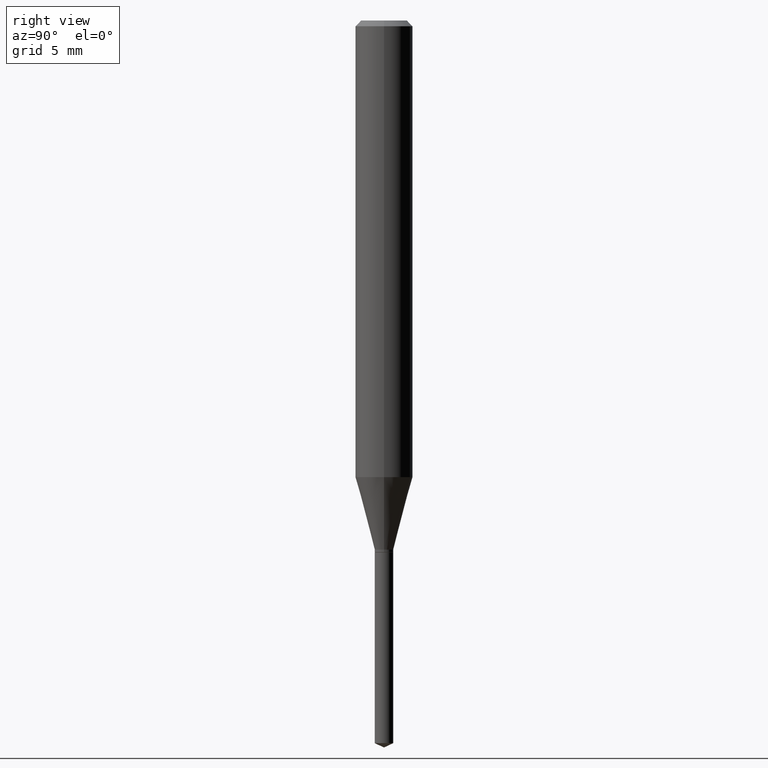
[diagram: clean part render]
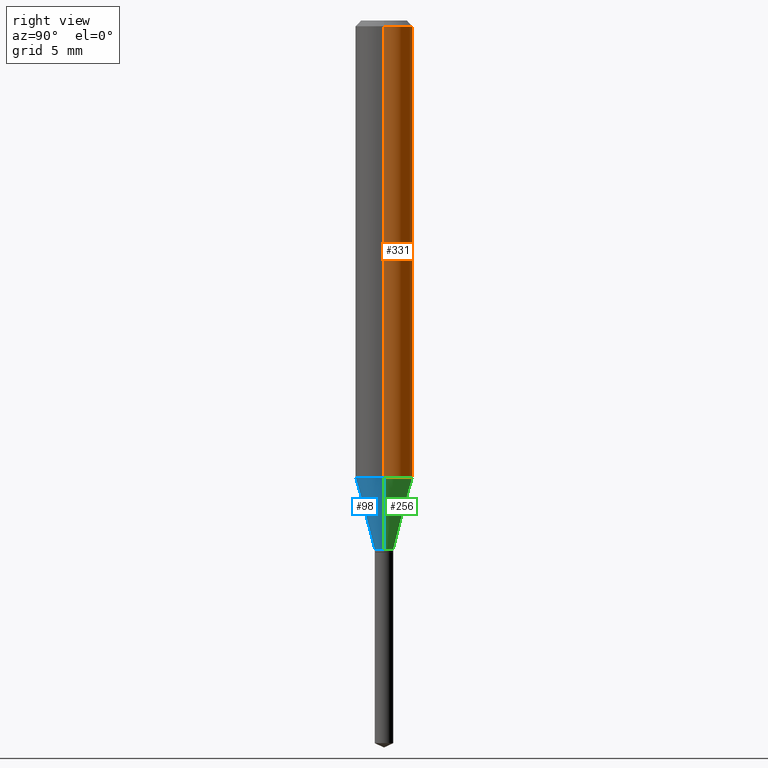
[diagram: same view with three faces highlighted in distinct colors, each labeled with its STEP entity id]
A machine part, right view with three faces highlighted in distinct colors.
Their STEP definitions:

[orange] entity #331 — the highlighted cylindrical surface (edge-blend (fillet) strip) has radius 1.4999 mm, axis along (-0, 0, 1).
#5 = VERTEX_POINT ( 'NONE', #349 ) ;
#6 = DIRECTION ( 'NONE',  ( 1.000000000000000000, -6.982962677686266711E-15, 4.876176775795935793E-29 ) ) ;
#7 = DIRECTION ( 'NONE',  ( -2.445468806185136597E-29, 3.491481338843145583E-15, 1.000000000000000000 ) ) ;
#19 = FACE_OUTER_BOUND ( 'NONE', #225, .T. ) ;
#33 = LINE ( 'NONE', #251, #446 ) ;
#40 = ORIENTED_EDGE ( 'NONE', *, *, #195, .T. ) ;
#48 = DIRECTION ( 'NONE',  ( -2.445468806185136597E-29, 3.491481338843145583E-15, 1.000000000000000000 ) ) ;
#60 = LINE ( 'NONE', #205, #407 ) ;
#83 = ORIENTED_EDGE ( 'NONE', *, *, #293, .F. ) ;
#106 = ORIENTED_EDGE ( 'NONE', *, *, #461, .F. ) ;
#109 = VERTEX_POINT ( 'NONE', #168 ) ;
#135 = DIRECTION ( 'NONE',  ( -2.445468806185136877E-29, 3.491481338843145188E-15, 1.000000000000000000 ) ) ;
#161 = CYLINDRICAL_SURFACE ( 'NONE', #428, 0.05905000000000005383 ) ;
#168 = CARTESIAN_POINT ( 'NONE',  ( -0.05905000000000010241, -2.861385485543939476E-15, -0.9397045702376232157 ) ) ;
#192 = VERTEX_POINT ( 'NONE', #402 ) ;
#195 = EDGE_CURVE ( 'NONE', #109, #192, #33, .T. ) ;
#205 = CARTESIAN_POINT ( 'NONE',  ( 0.05905000000000005383, -4.123439461173744271E-16, 2.879382386107502672E-30 ) ) ;
#225 = EDGE_LOOP ( 'NONE', ( #359, #40, #83, #106 ) ) ;
#251 = CARTESIAN_POINT ( 'NONE',  ( -0.05905000000000005383, 4.195754854663395423E-16, -2.904631170795524694E-30 ) ) ;
#260 = AXIS2_PLACEMENT_3D ( 'NONE', #383, #7, #440 ) ;
#267 = VERTEX_POINT ( 'NONE', #380 ) ;
#279 = DIRECTION ( 'NONE',  ( -2.445468806185136597E-29, 3.491481338843145583E-15, 1.000000000000000000 ) ) ;
#293 = EDGE_CURVE ( 'NONE', #267, #192, #452, .T. ) ;
#310 = CARTESIAN_POINT ( 'NONE',  ( 0.000000000000000000, 0.000000000000000000, 0.000000000000000000 ) ) ;
#328 = DIRECTION ( 'NONE',  ( -2.445468806185136877E-29, 3.491481338843145188E-15, 1.000000000000000000 ) ) ;
#331 = ADVANCED_FACE ( 'NONE', ( #19 ), #161, .T. ) ;
#341 = CIRCLE ( 'NONE', #382, 0.05905000000000010935 ) ;
#349 = CARTESIAN_POINT ( 'NONE',  ( 0.05905000000000010241, -3.693304917127654284E-15, -0.9397045702376232157 ) ) ;
#359 = ORIENTED_EDGE ( 'NONE', *, *, #405, .T. ) ;
#380 = CARTESIAN_POINT ( 'NONE',  ( 0.05904999999999999832, -4.535783407291118600E-16, -0.01181000000000006871 ) ) ;
#382 = AXIS2_PLACEMENT_3D ( 'NONE', #395, #48, #424 ) ;
#383 = CARTESIAN_POINT ( 'NONE',  ( 2.888098660104663328E-31, -4.123439461173779030E-17, -0.01181000000000006871 ) ) ;
#395 = CARTESIAN_POINT ( 'NONE',  ( 2.298018213545717288E-29, -3.280960971010279363E-15, -0.9397045702376232157 ) ) ;
#402 = CARTESIAN_POINT ( 'NONE',  ( -0.05904999999999999832, -1.241522197344668659E-15, -0.01181000000000006871 ) ) ;
#405 = EDGE_CURVE ( 'NONE', #5, #109, #341, .T. ) ;
#407 = VECTOR ( 'NONE', #328, 39.37007874015748143 ) ;
#424 = DIRECTION ( 'NONE',  ( 1.000000000000000000, -6.982962677686267499E-15, 0.000000000000000000 ) ) ;
#428 = AXIS2_PLACEMENT_3D ( 'NONE', #310, #279, #6 ) ;
#440 = DIRECTION ( 'NONE',  ( 1.000000000000000000, -6.982962677686266711E-15, 0.000000000000000000 ) ) ;
#446 = VECTOR ( 'NONE', #135, 39.37007874015748143 ) ;
#452 = CIRCLE ( 'NONE', #260, 0.05904999999999999832 ) ;
#461 = EDGE_CURVE ( 'NONE', #5, #267, #60, .T. ) ;

[blue] entity #98 — the highlighted conical surface has half-angle 15 deg.
#4 = CARTESIAN_POINT ( 'NONE',  ( 2.662626436174376212E-29, -3.801524881732416844E-15, -1.088799999999999768 ) ) ;
#5 = VERTEX_POINT ( 'NONE', #349 ) ;
#8 = VERTEX_POINT ( 'NONE', #55 ) ;
#13 = ORIENTED_EDGE ( 'NONE', *, *, #425, .T. ) ;
#25 = EDGE_CURVE ( 'NONE', #8, #109, #148, .T. ) ;
#32 = EDGE_CURVE ( 'NONE', #109, #5, #133, .T. ) ;
#55 = CARTESIAN_POINT ( 'NONE',  ( -0.01910000000000000239, -3.674889070683229485E-15, -1.088799999999999768 ) ) ;
#65 = ORIENTED_EDGE ( 'NONE', *, *, #32, .F. ) ;
#76 = DIRECTION ( 'NONE',  ( 1.000000000000000000, -6.982962677686266711E-15, 0.000000000000000000 ) ) ;
#89 = DIRECTION ( 'NONE',  ( -2.445468806185136597E-29, 3.491481338843145583E-15, 1.000000000000000000 ) ) ;
#98 = ADVANCED_FACE ( 'NONE', ( #470 ), #401, .T. ) ;
#109 = VERTEX_POINT ( 'NONE', #168 ) ;
#110 = DIRECTION ( 'NONE',  ( -2.445468806185136597E-29, 3.491481338843145583E-15, 1.000000000000000000 ) ) ;
#118 = DIRECTION ( 'NONE',  ( -2.445468806185136597E-29, 3.491481338843145583E-15, 1.000000000000000000 ) ) ;
#121 = DIRECTION ( 'NONE',  ( 1.000000000000000000, -6.982962677686267499E-15, 0.000000000000000000 ) ) ;
#133 = CIRCLE ( 'NONE', #196, 0.05905000000000010935 ) ;
#136 = CARTESIAN_POINT ( 'NONE',  ( 0.01910000000000000239, -3.934899468876224450E-15, -1.088799999999999768 ) ) ;
#148 = LINE ( 'NONE', #311, #373 ) ;
#168 = CARTESIAN_POINT ( 'NONE',  ( -0.05905000000000010241, -2.861385485543939476E-15, -0.9397045702376232157 ) ) ;
#170 = LINE ( 'NONE', #271, #486 ) ;
#186 = AXIS2_PLACEMENT_3D ( 'NONE', #4, #110, #76 ) ;
#196 = AXIS2_PLACEMENT_3D ( 'NONE', #429, #89, #121 ) ;
#201 = CARTESIAN_POINT ( 'NONE',  ( 2.662626436174376212E-29, -3.801524881732416844E-15, -1.088799999999999768 ) ) ;
#226 = VERTEX_POINT ( 'NONE', #136 ) ;
#229 = EDGE_LOOP ( 'NONE', ( #278, #13, #385, #65 ) ) ;
#271 = CARTESIAN_POINT ( 'NONE',  ( 0.01910000000000000239, -3.934899468876224450E-15, -1.088799999999999768 ) ) ;
#276 = CIRCLE ( 'NONE', #186, 0.01910000000000000239 ) ;
#278 = ORIENTED_EDGE ( 'NONE', *, *, #25, .F. ) ;
#287 = EDGE_CURVE ( 'NONE', #226, #5, #170, .T. ) ;
#309 = DIRECTION ( 'NONE',  ( 0.2588190451025213501, 1.565188264969621968E-15, 0.9659258262890682012 ) ) ;
#311 = CARTESIAN_POINT ( 'NONE',  ( -0.01910000000000000239, -3.665811219202237667E-15, -1.088799999999999768 ) ) ;
#327 = AXIS2_PLACEMENT_3D ( 'NONE', #201, #118, #389 ) ;
#349 = CARTESIAN_POINT ( 'NONE',  ( 0.05905000000000010241, -3.693304917127654284E-15, -0.9397045702376232157 ) ) ;
#369 = DIRECTION ( 'NONE',  ( -0.2588190451025213501, 5.211531920934551042E-15, 0.9659258262890682012 ) ) ;
#373 = VECTOR ( 'NONE', #369, 39.37007874015747433 ) ;
#385 = ORIENTED_EDGE ( 'NONE', *, *, #287, .T. ) ;
#389 = DIRECTION ( 'NONE',  ( 1.000000000000000000, -6.982962677686266711E-15, 0.000000000000000000 ) ) ;
#401 = CONICAL_SURFACE ( 'NONE', #327, 0.01910000000000000239, 0.2617993877991500740 ) ;
#425 = EDGE_CURVE ( 'NONE', #8, #226, #276, .T. ) ;
#429 = CARTESIAN_POINT ( 'NONE',  ( 2.298018213545717288E-29, -3.280960971010279363E-15, -0.9397045702376232157 ) ) ;
#470 = FACE_OUTER_BOUND ( 'NONE', #229, .T. ) ;
#486 = VECTOR ( 'NONE', #309, 39.37007874015747433 ) ;

[green] entity #256 — the highlighted conical surface has half-angle 15 deg.
#3 = ORIENTED_EDGE ( 'NONE', *, *, #405, .F. ) ;
#5 = VERTEX_POINT ( 'NONE', #349 ) ;
#8 = VERTEX_POINT ( 'NONE', #55 ) ;
#11 = EDGE_LOOP ( 'NONE', ( #352, #488, #3, #489 ) ) ;
#25 = EDGE_CURVE ( 'NONE', #8, #109, #148, .T. ) ;
#48 = DIRECTION ( 'NONE',  ( -2.445468806185136597E-29, 3.491481338843145583E-15, 1.000000000000000000 ) ) ;
#55 = CARTESIAN_POINT ( 'NONE',  ( -0.01910000000000000239, -3.674889070683229485E-15, -1.088799999999999768 ) ) ;
#62 = CONICAL_SURFACE ( 'NONE', #315, 0.01910000000000000239, 0.2617993877991500740 ) ;
#109 = VERTEX_POINT ( 'NONE', #168 ) ;
#136 = CARTESIAN_POINT ( 'NONE',  ( 0.01910000000000000239, -3.934899468876224450E-15, -1.088799999999999768 ) ) ;
#144 = FACE_OUTER_BOUND ( 'NONE', #11, .T. ) ;
#148 = LINE ( 'NONE', #311, #373 ) ;
#163 = CARTESIAN_POINT ( 'NONE',  ( 2.662626436174376212E-29, -3.801524881732416844E-15, -1.088799999999999768 ) ) ;
#168 = CARTESIAN_POINT ( 'NONE',  ( -0.05905000000000010241, -2.861385485543939476E-15, -0.9397045702376232157 ) ) ;
#170 = LINE ( 'NONE', #271, #486 ) ;
#177 = DIRECTION ( 'NONE',  ( 1.000000000000000000, -6.982962677686266711E-15, 0.000000000000000000 ) ) ;
#218 = DIRECTION ( 'NONE',  ( -2.445468806185136597E-29, 3.491481338843145583E-15, 1.000000000000000000 ) ) ;
#226 = VERTEX_POINT ( 'NONE', #136 ) ;
#256 = ADVANCED_FACE ( 'NONE', ( #144 ), #62, .T. ) ;
#261 = CARTESIAN_POINT ( 'NONE',  ( 2.662626436174376212E-29, -3.801524881732416844E-15, -1.088799999999999768 ) ) ;
#271 = CARTESIAN_POINT ( 'NONE',  ( 0.01910000000000000239, -3.934899468876224450E-15, -1.088799999999999768 ) ) ;
#287 = EDGE_CURVE ( 'NONE', #226, #5, #170, .T. ) ;
#290 = DIRECTION ( 'NONE',  ( -2.445468806185136597E-29, 3.491481338843145583E-15, 1.000000000000000000 ) ) ;
#309 = DIRECTION ( 'NONE',  ( 0.2588190451025213501, 1.565188264969621968E-15, 0.9659258262890682012 ) ) ;
#311 = CARTESIAN_POINT ( 'NONE',  ( -0.01910000000000000239, -3.665811219202237667E-15, -1.088799999999999768 ) ) ;
#315 = AXIS2_PLACEMENT_3D ( 'NONE', #261, #218, #177 ) ;
#341 = CIRCLE ( 'NONE', #382, 0.05905000000000010935 ) ;
#349 = CARTESIAN_POINT ( 'NONE',  ( 0.05905000000000010241, -3.693304917127654284E-15, -0.9397045702376232157 ) ) ;
#352 = ORIENTED_EDGE ( 'NONE', *, *, #490, .T. ) ;
#369 = DIRECTION ( 'NONE',  ( -0.2588190451025213501, 5.211531920934551042E-15, 0.9659258262890682012 ) ) ;
#373 = VECTOR ( 'NONE', #369, 39.37007874015747433 ) ;
#382 = AXIS2_PLACEMENT_3D ( 'NONE', #395, #48, #424 ) ;
#393 = CIRCLE ( 'NONE', #469, 0.01910000000000000239 ) ;
#395 = CARTESIAN_POINT ( 'NONE',  ( 2.298018213545717288E-29, -3.280960971010279363E-15, -0.9397045702376232157 ) ) ;
#405 = EDGE_CURVE ( 'NONE', #5, #109, #341, .T. ) ;
#424 = DIRECTION ( 'NONE',  ( 1.000000000000000000, -6.982962677686267499E-15, 0.000000000000000000 ) ) ;
#442 = DIRECTION ( 'NONE',  ( 1.000000000000000000, -6.982962677686266711E-15, 0.000000000000000000 ) ) ;
#469 = AXIS2_PLACEMENT_3D ( 'NONE', #163, #290, #442 ) ;
#486 = VECTOR ( 'NONE', #309, 39.37007874015747433 ) ;
#488 = ORIENTED_EDGE ( 'NONE', *, *, #25, .T. ) ;
#489 = ORIENTED_EDGE ( 'NONE', *, *, #287, .F. ) ;
#490 = EDGE_CURVE ( 'NONE', #226, #8, #393, .T. ) ;